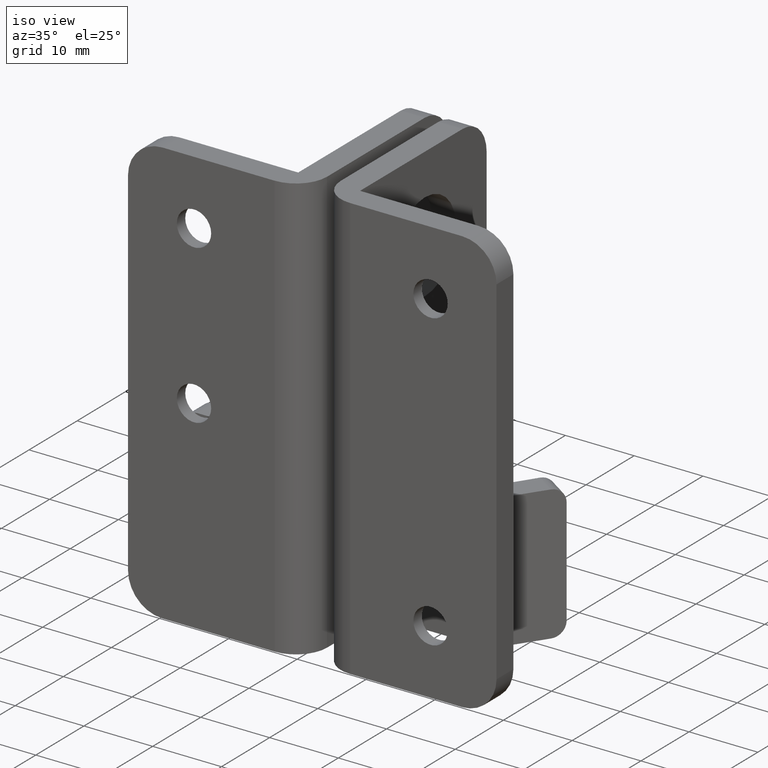
[diagram: clean part render]
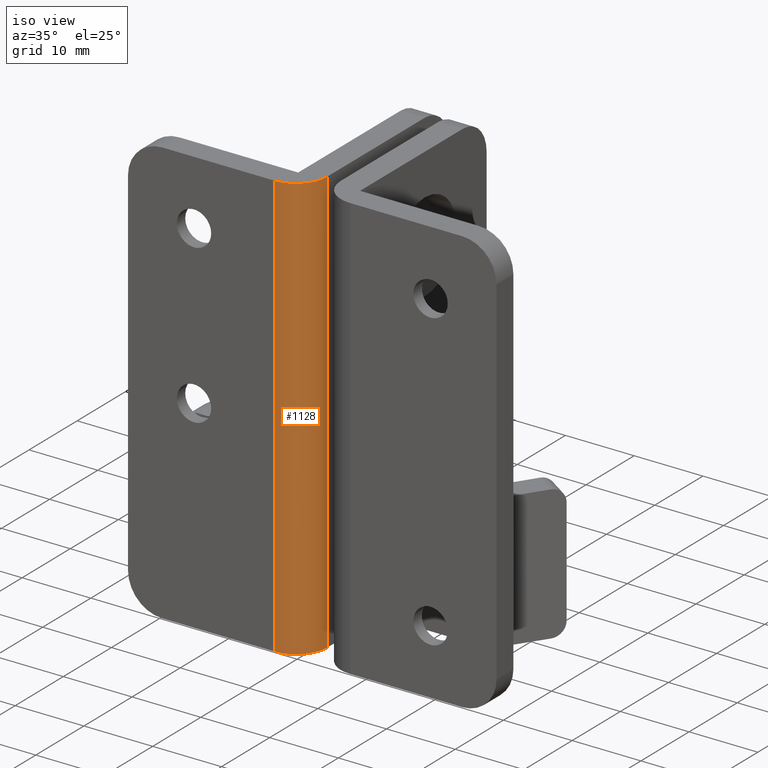
[diagram: same view with one face highlighted and labeled with its STEP entity id]
A machine part, iso view. The second image highlights one B-rep face of the part: STEP entity #1128.
In plain terms, the highlighted cylindrical surface (partial cylindrical patch) has radius 4.5 mm, axis along (0, 0, -1).
Its self-contained STEP definition (entity closure, byte-faithful):
#129=FACE_OUTER_BOUND('',#209,.T.);
#209=EDGE_LOOP('',(#830,#831,#832,#833));
#291=LINE('',#1721,#381);
#293=LINE('',#1768,#383);
#381=VECTOR('',#1355,61.9);
#383=VECTOR('',#1415,61.9);
#478=CIRCLE('',#1220,4.5);
#479=CIRCLE('',#1221,4.5);
#531=VERTEX_POINT('',#1718);
#532=VERTEX_POINT('',#1720);
#547=VERTEX_POINT('',#1764);
#548=VERTEX_POINT('',#1766);
#645=EDGE_CURVE('',#532,#531,#291,.T.);
#661=EDGE_CURVE('',#547,#532,#478,.T.);
#662=EDGE_CURVE('',#531,#548,#479,.T.);
#663=EDGE_CURVE('',#548,#547,#293,.T.);
#830=ORIENTED_EDGE('',*,*,#661,.T.);
#831=ORIENTED_EDGE('',*,*,#645,.T.);
#832=ORIENTED_EDGE('',*,*,#662,.T.);
#833=ORIENTED_EDGE('',*,*,#663,.T.);
#1089=CYLINDRICAL_SURFACE('',#1219,4.5);
#1128=ADVANCED_FACE('',(#129),#1089,.T.);
#1219=AXIS2_PLACEMENT_3D('',#1763,#1409,#1410);
#1220=AXIS2_PLACEMENT_3D('',#1765,#1411,#1412);
#1221=AXIS2_PLACEMENT_3D('',#1767,#1413,#1414);
#1355=DIRECTION('',(0.,0.,1.));
#1409=DIRECTION('center_axis',(0.,0.,-1.));
#1410=DIRECTION('ref_axis',(0.707106781186548,-0.707106781186547,0.));
#1411=DIRECTION('center_axis',(0.,0.,1.));
#1412=DIRECTION('ref_axis',(0.707106781186548,-0.707106781186547,0.));
#1413=DIRECTION('center_axis',(0.,0.,-1.));
#1414=DIRECTION('ref_axis',(0.707106781186548,-0.707106781186547,0.));
#1415=DIRECTION('',(0.,0.,-1.));
#1718=CARTESIAN_POINT('',(25.8,4.5,0.));
#1720=CARTESIAN_POINT('',(25.8,4.5,-61.9));
#1721=CARTESIAN_POINT('',(25.8,4.5,0.));
#1763=CARTESIAN_POINT('Origin',(21.3,4.5,0.));
#1764=CARTESIAN_POINT('',(21.3,0.,-61.9));
#1765=CARTESIAN_POINT('Origin',(21.3,4.5,-61.9));
#1766=CARTESIAN_POINT('',(21.3,0.,0.));
#1767=CARTESIAN_POINT('Origin',(21.3,4.5,0.));
#1768=CARTESIAN_POINT('',(21.3,0.,0.));